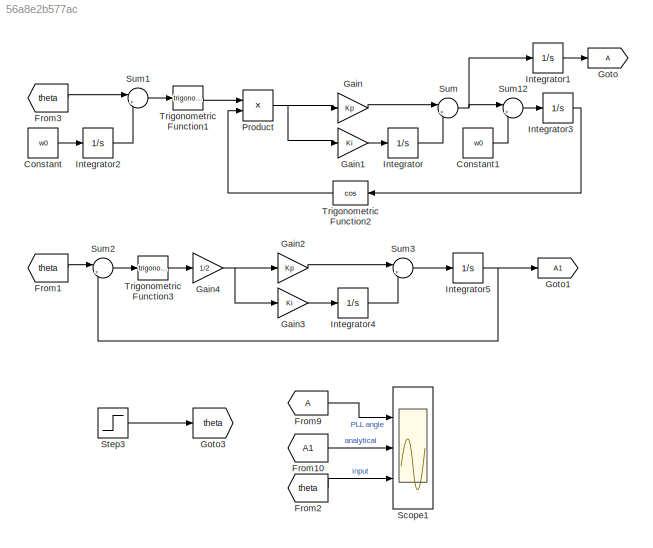
MODEL slx_56a8e2b577ac
KIND model
CONFIG AbsTol = auto
CONFIG EnableMultiTasking = off
CONFIG FixedStep = auto
CONFIG InitFcn = w0 = 377; Kp=180; Ki=3200;
CONFIG MaxStep = auto
CONFIG MinStep = auto
CONFIG RelTol = 1e-3
CONFIG SampleTimeConstraint = Unconstrained
CONFIG SolverName = VariableStepAuto
CONFIG StartTime = 0.0
CONFIG StopTime = 1.2
BLOCK [Constant] Constant
  Value = w0
BLOCK [Constant] Constant1
  Value = w0
BLOCK [From] From1
  GotoTag = theta
BLOCK [From] From10
  GotoTag = A1
BLOCK [From] From2
  GotoTag = theta
BLOCK [From] From3
  GotoTag = theta
BLOCK [From] From9
BLOCK [Gain] Gain
  Gain = Kp
BLOCK [Gain] Gain1
  Gain = Ki
BLOCK [Gain] Gain2
  Gain = Kp
BLOCK [Gain] Gain3
  Gain = Ki
BLOCK [Gain] Gain4
  Gain = 1/2
BLOCK [Goto] Goto
BLOCK [Goto] Goto1
  GotoTag = A1
BLOCK [Goto] Goto3
  GotoTag = theta
BLOCK [Integrator] Integrator
  Ports = [1, 1]
BLOCK [Integrator] Integrator1
  Ports = [1, 1]
BLOCK [Integrator] Integrator2
  Ports = [1, 1]
BLOCK [Integrator] Integrator3
  Ports = [1, 1]
BLOCK [Integrator] Integrator4
  Ports = [1, 1]
BLOCK [Integrator] Integrator5
  Ports = [1, 1]
BLOCK [Product] Product
  Ports = [2, 1]
BLOCK [Scope] Scope1
  Floating = off
  NameLocation = right
  NumInputPorts = 3
  Ports = [3]
  ScopeSpecificationString = Simulink.scopes.TimeScopeBlockCfg('CurrentConfiguration', extmgr.ConfigurationSet(extmgr.Configuration('Core','General UI',true),extmgr.Configuration('Core','Source UI',true),extmgr.Configuration('Sources','WiredSimulink',true,'DataLogging',true,'DataLoggingSaveFormat','StructureWithTime'),extmgr.Configuration('Visuals','Time Domain',true,'SerializedDisplays',{struct('MinYLimReal','-0.27594','MaxY...<+1562ch>
BLOCK [Step] Step3
  After = 0.5
  SampleTime = 0
BLOCK [Sum] Sum
  Inputs = |++
  Ports = [2, 1]
BLOCK [Sum] Sum1
  Inputs = |++
  Ports = [2, 1]
BLOCK [Sum] Sum12
  Inputs = |++
  Ports = [2, 1]
BLOCK [Sum] Sum2
  Inputs = |+-
  Ports = [2, 1]
BLOCK [Sum] Sum3
  Inputs = |++
  Ports = [2, 1]
BLOCK [Trigonometry] Trigonometric Function1
  Ports = [1, 1]
BLOCK [Trigonometry] Trigonometric Function2
  Operator = cos
  Ports = [1, 1]
BLOCK [Trigonometry] Trigonometric Function3
  Ports = [1, 1]
LINE Constant1:1 -> Sum12:2
LINE Constant:1 -> Integrator2:1
LINE From10:1 -> Scope1:2
LINE From1:1 -> Sum2:1
LINE From2:1 -> Scope1:3
LINE From3:1 -> Sum1:1
LINE From9:1 -> Scope1:1
LINE Gain1:1 -> Integrator:1
LINE Gain2:1 -> Sum3:1
LINE Gain3:1 -> Integrator4:1
NET Gain4:1 -> Gain2:1, Gain3:1
LINE Gain:1 -> Sum:1
LINE Integrator1:1 -> Goto:1
LINE Integrator2:1 -> Sum1:2
LINE Integrator3:1 -> Trigonometric Function2:1
LINE Integrator4:1 -> Sum3:2
NET Integrator5:1 -> Goto1:1, Sum2:2
LINE Integrator:1 -> Sum:2
NET Product:1 -> Gain1:1, Gain:1
LINE Step3:1 -> Goto3:1
LINE Sum12:1 -> Integrator3:1
LINE Sum1:1 -> Trigonometric Function1:1
LINE Sum2:1 -> Trigonometric Function3:1
LINE Sum3:1 -> Integrator5:1
NET Sum:1 -> Integrator1:1, Sum12:1
LINE Trigonometric Function1:1 -> Product:1
LINE Trigonometric Function2:1 -> Product:2
LINE Trigonometric Function3:1 -> Gain4:1
note: NET lines group one-source signal fan-out (src -> all destinations, sorted); 1:1 wires keep LINE
